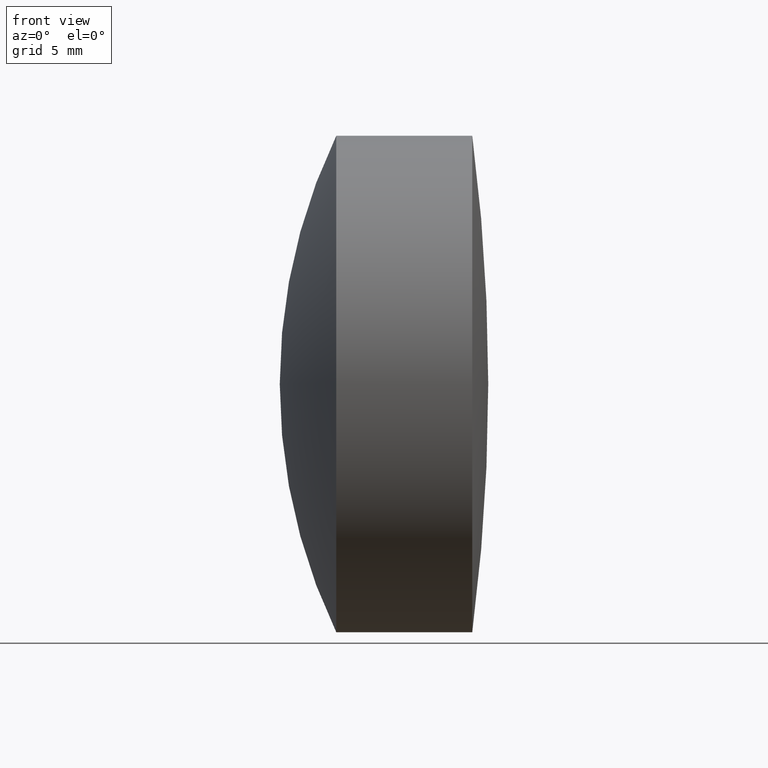
[diagram: clean part render]
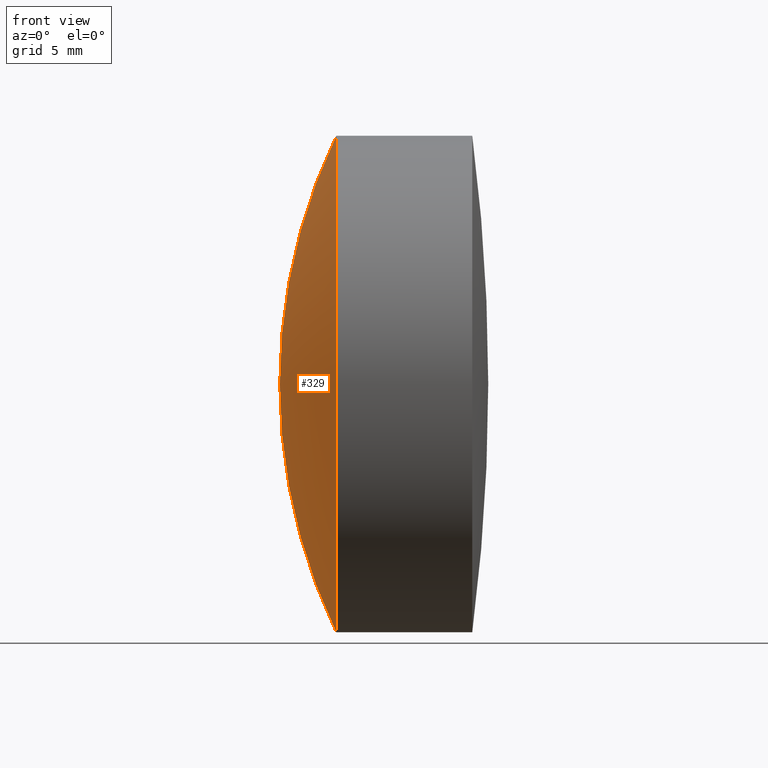
[diagram: same view with one face highlighted and labeled with its STEP entity id]
A machine part, front view. The second image highlights one B-rep face of the part: STEP entity #329.
In plain terms, the highlighted spherical surface has radius 28.87 mm.
Its self-contained STEP definition (entity closure, byte-faithful):
#36 = AXIS2_PLACEMENT_3D ( 'NONE', #270, #288, #66 ) ;
#37 = EDGE_CURVE ( 'NONE', #297, #340, #121, .T. ) ;
#56 = CIRCLE ( 'NONE', #280, 28.86999999999999700 ) ;
#66 = DIRECTION ( 'NONE',  ( 0.0000000000000000000, 0.0000000000000000000, -1.000000000000000000 ) ) ;
#85 = CARTESIAN_POINT ( 'NONE',  ( 28.25966897357473300, 0.0000000000000000000, -1.727120060984094100E-015 ) ) ;
#93 = EDGE_LOOP ( 'NONE', ( #116, #172, #219 ) ) ;
#97 = CARTESIAN_POINT ( 'NONE',  ( 57.12966897357473100, 0.0000000000000000000, 4.065759358510992000E-017 ) ) ;
#114 = DIRECTION ( 'NONE',  ( 0.0000000000000000000, 1.224646799147353000E-016, -1.000000000000000000 ) ) ;
#116 = ORIENTED_EDGE ( 'NONE', *, *, #143, .T. ) ;
#117 = DIRECTION ( 'NONE',  ( 0.0000000000000000000, -1.000000000000000000, -1.224646799147353200E-016 ) ) ;
#121 = CIRCLE ( 'NONE', #158, 28.86999999999999700 ) ;
#143 = EDGE_CURVE ( 'NONE', #297, #145, #185, .T. ) ;
#145 = VERTEX_POINT ( 'NONE', #198 ) ;
#158 = AXIS2_PLACEMENT_3D ( 'NONE', #97, #290, #175 ) ;
#172 = ORIENTED_EDGE ( 'NONE', *, *, #176, .T. ) ;
#175 = DIRECTION ( 'NONE',  ( 0.0000000000000000000, 0.0000000000000000000, 1.000000000000000000 ) ) ;
#176 = EDGE_CURVE ( 'NONE', #145, #340, #56, .T. ) ;
#185 = CIRCLE ( 'NONE', #226, 12.50000000000000000 ) ;
#186 = FACE_OUTER_BOUND ( 'NONE', #93, .T. ) ;
#188 = DIRECTION ( 'NONE',  ( -1.000000000000000000, -0.0000000000000000000, -0.0000000000000000000 ) ) ;
#194 = CARTESIAN_POINT ( 'NONE',  ( 31.10608543863473900, 0.0000000000000000000, 0.0000000000000000000 ) ) ;
#198 = CARTESIAN_POINT ( 'NONE',  ( 31.10608543863473900, -1.530808498934191100E-015, 12.49999999999999800 ) ) ;
#219 = ORIENTED_EDGE ( 'NONE', *, *, #37, .F. ) ;
#226 = AXIS2_PLACEMENT_3D ( 'NONE', #194, #188, #306 ) ;
#261 = CARTESIAN_POINT ( 'NONE',  ( 57.12966897357473100, 0.0000000000000000000, 4.065759358510992000E-017 ) ) ;
#270 = CARTESIAN_POINT ( 'NONE',  ( 57.12966897357473100, 0.0000000000000000000, 4.065759358510992000E-017 ) ) ;
#280 = AXIS2_PLACEMENT_3D ( 'NONE', #261, #117, #114 ) ;
#288 = DIRECTION ( 'NONE',  ( -0.0000000000000000000, -1.000000000000000000, -0.0000000000000000000 ) ) ;
#289 = SPHERICAL_SURFACE ( 'NONE', #36, 28.86999999999999700 ) ;
#290 = DIRECTION ( 'NONE',  ( 0.0000000000000000000, 1.000000000000000000, -0.0000000000000000000 ) ) ;
#297 = VERTEX_POINT ( 'NONE', #322 ) ;
#306 = DIRECTION ( 'NONE',  ( 0.0000000000000000000, 0.0000000000000000000, 1.000000000000000000 ) ) ;
#322 = CARTESIAN_POINT ( 'NONE',  ( 31.10608543863473900, 0.0000000000000000000, -12.49999999999999800 ) ) ;
#329 = ADVANCED_FACE ( 'NONE', ( #186 ), #289, .T. ) ;
#340 = VERTEX_POINT ( 'NONE', #85 ) ;